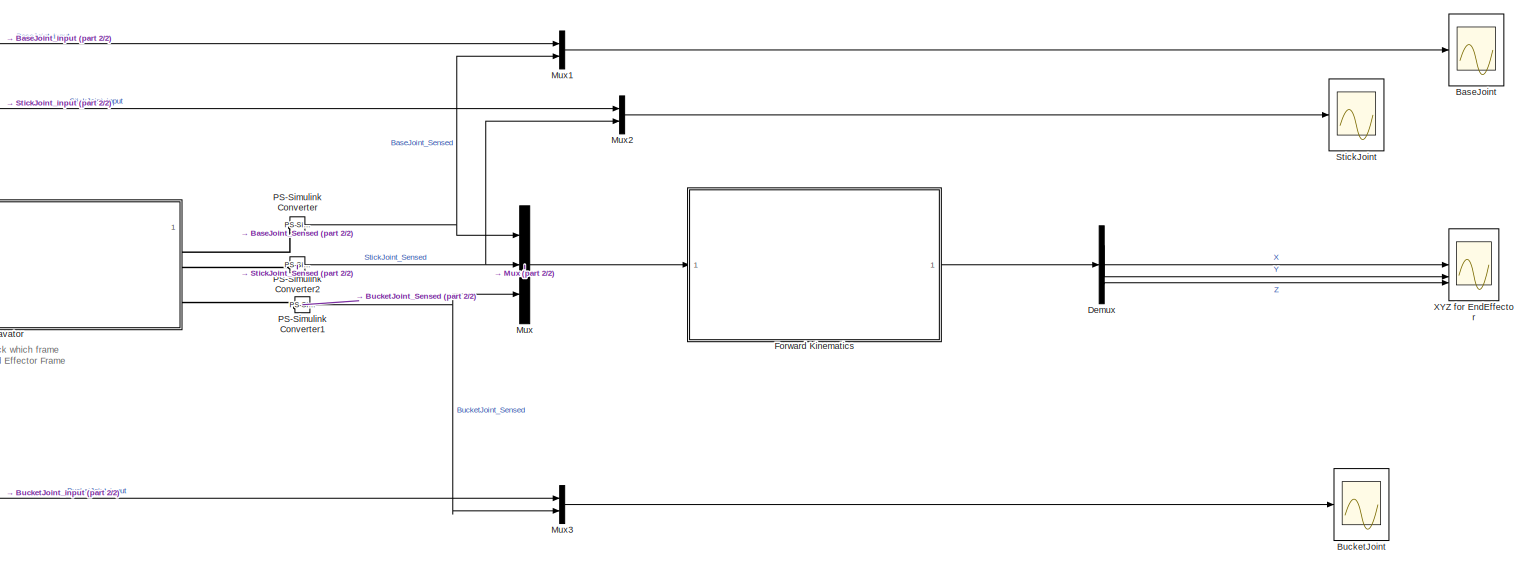
[diagram: root canvas - part 1/2, center side, full height]
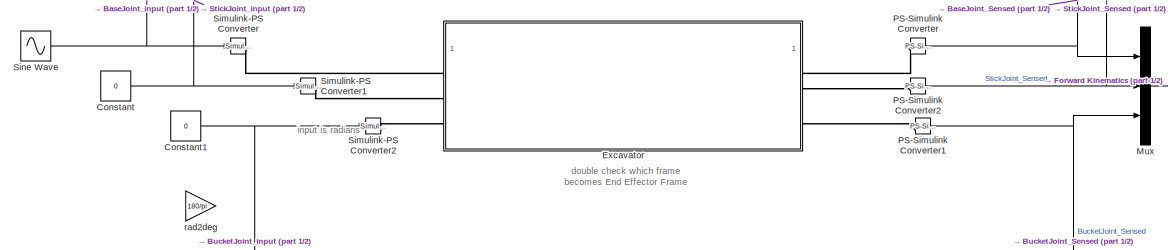
[diagram: root canvas - part 2/2, middle left region]
MODEL slx_75102b206fad
KIND model
CONFIG AbsTol = auto
CONFIG EnableMultiTasking = off
CONFIG FixedStep = auto
CONFIG MaxStep = auto
CONFIG MinStep = auto
CONFIG RelTol = 1e-3
CONFIG SampleTimeConstraint = Unconstrained
CONFIG SolverName = VariableStepAuto
CONFIG StartTime = 0.0
CONFIG StopTime = 10
BLOCK [Scope] BaseJoint
  Floating = off
  NumInputPorts = 1
  ScopeSpecificationString = Simulink.scopes.TimeScopeBlockCfg('CurrentConfiguration', extmgr.ConfigurationSet(extmgr.Configuration('Core','General UI',true),extmgr.Configuration('Core','Source UI',true),extmgr.Configuration('Sources','WiredSimulink',true,'DataLoggingVariableName','ScopeData1'),extmgr.Configuration('Visuals','Time Domain',true,'SerializedDisplays',{struct('MinYLimReal','0.5236','MaxYLimReal','1.8326','YLabelR...<+1547ch>
BLOCK [Scope] BucketJoint
  Floating = off
  NumInputPorts = 1
  ScopeSpecificationString = Simulink.scopes.TimeScopeBlockCfg('CurrentConfiguration', extmgr.ConfigurationSet(extmgr.Configuration('Core','General UI',true),extmgr.Configuration('Core','Source UI',true),extmgr.Configuration('Sources','WiredSimulink',true,'DataLoggingVariableName','ScopeData2'),extmgr.Configuration('Visuals','Time Domain',true,'SerializedDisplays',{struct('MinYLimReal','-1.00000','MaxYLimReal','1.00000','YLab...<+1561ch>
BLOCK [Constant] Constant
  Value = 0
BLOCK [Constant] Constant1
  Value = 0
BLOCK [Demux] Demux
  Outputs = 3
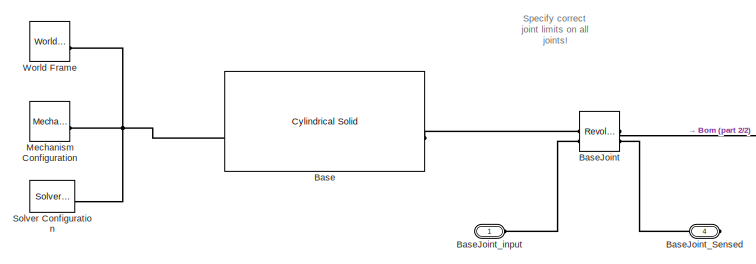
[diagram: Excavator - part 1/2, left side, full height]
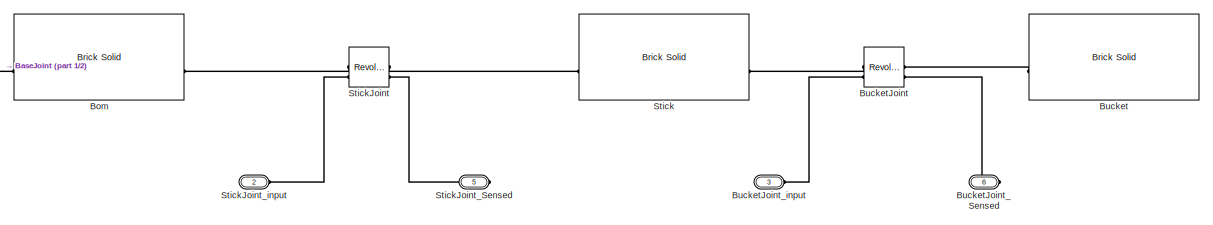
[diagram: Excavator - part 2/2, middle right region]
BLOCK [SubSystem] Excavator
BLOCK [Reference] Excavator/Base  REF=sm_lib/Body Elements/Cylindrical Solid
  SourceBlock = sm_lib/Body Elements/Cylindrical Solid
  SourceType = Cylindrical Solid
BLOCK [Reference] Excavator/BaseJoint  REF=sm_lib/Joints/Revolute Joint
  SourceBlock = sm_lib/Joints/Revolute Joint
  SourceType = Revolute Joint
BLOCK [PMIOPort] Excavator/BaseJoint_Sensed
  Port = 4
  Side = Right
BLOCK [PMIOPort] Excavator/BaseJoint_input
  Side = Left
BLOCK [Reference] Excavator/Bom  REF=sm_lib/Body Elements/Brick Solid
  SourceBlock = sm_lib/Body Elements/Brick Solid
  SourceType = Brick Solid
BLOCK [Reference] Excavator/Bucket  REF=sm_lib/Body Elements/Brick Solid
  SourceBlock = sm_lib/Body Elements/Brick Solid
  SourceType = Brick Solid
BLOCK [Reference] Excavator/BucketJoint  REF=sm_lib/Joints/Revolute Joint
  SourceBlock = sm_lib/Joints/Revolute Joint
  SourceType = Revolute Joint
BLOCK [PMIOPort] Excavator/BucketJoint_Sensed
  Port = 6
  Side = Right
BLOCK [PMIOPort] Excavator/BucketJoint_input
  Port = 3
  Side = Left
BLOCK [Reference] Excavator/Mechanism Configuration  REF=sm_lib/Utilities/Mechanism
Configuration
  SourceBlock = sm_lib/Utilities/Mechanism\nConfiguration
  SourceType = Mechanism\nConfiguration
BLOCK [Reference] Excavator/Solver Configuration  REF=nesl_utility/Solver
Configuration
  SourceBlock = nesl_utility/Solver\nConfiguration
  SourceType = Solver\nConfiguration
BLOCK [Reference] Excavator/Stick  REF=sm_lib/Body Elements/Brick Solid
  SourceBlock = sm_lib/Body Elements/Brick Solid
  SourceType = Brick Solid
BLOCK [Reference] Excavator/StickJoint  REF=sm_lib/Joints/Revolute Joint
  SourceBlock = sm_lib/Joints/Revolute Joint
  SourceType = Revolute Joint
BLOCK [PMIOPort] Excavator/StickJoint_Sensed
  Port = 5
  Side = Right
BLOCK [PMIOPort] Excavator/StickJoint_input
  Port = 2
  Side = Left
BLOCK [Reference] Excavator/World Frame  REF=sm_lib/Frames and
Transforms/World Frame
  SourceBlock = sm_lib/Frames and\nTransforms/World Frame
  SourceType = World Frame
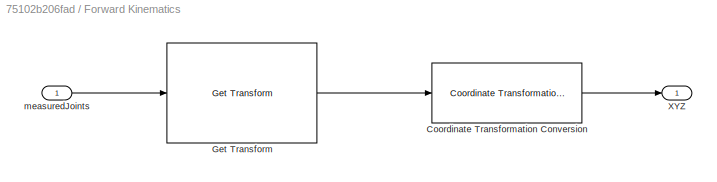
BLOCK [SubSystem] Forward Kinematics
BLOCK [Reference] Forward Kinematics/Coordinate Transformation Conversion  REF=robotcorelib/Coordinate Transformation Conversion
  LibrarySourceBlock = robotutilslib/Coordinate Transformation Conversion
  SourceBlock = robotcorelib/Coordinate Transformation Conversion
  SourceType = robotics.slcore.internal.block.CoordinateTransformationConversion
BLOCK [Reference] Forward Kinematics/Get Transform  REF=robotmaniplib/Get Transform
  SourceBlock = robotmaniplib/Get Transform
  SourceType = Get Transform
BLOCK [Outport] Forward Kinematics/XYZ
BLOCK [Inport] Forward Kinematics/measuredJoints
BLOCK [Mux] Mux
  DisplayOption = bar
  Inputs = 3
BLOCK [Mux] Mux1
  DisplayOption = bar
  Inputs = 2
BLOCK [Mux] Mux2
  DisplayOption = bar
  Inputs = 2
BLOCK [Mux] Mux3
  DisplayOption = bar
  Inputs = 2
BLOCK [Reference] PS-Simulink Converter  REF=nesl_utility/PS-Simulink
Converter
  SourceBlock = nesl_utility/PS-Simulink\nConverter
  SourceType = PS-Simulink\nConverter
BLOCK [Reference] PS-Simulink Converter1  REF=nesl_utility/PS-Simulink
Converter
  SourceBlock = nesl_utility/PS-Simulink\nConverter
  SourceType = PS-Simulink\nConverter
BLOCK [Reference] PS-Simulink Converter2  REF=nesl_utility/PS-Simulink
Converter
  SourceBlock = nesl_utility/PS-Simulink\nConverter
  SourceType = PS-Simulink\nConverter
BLOCK [Reference] Simulink-PS Converter  REF=nesl_utility/Simulink-PS
Converter
  SourceBlock = nesl_utility/Simulink-PS\nConverter
  SourceType = Simulink-PS\nConverter
BLOCK [Reference] Simulink-PS Converter1  REF=nesl_utility/Simulink-PS
Converter
  SourceBlock = nesl_utility/Simulink-PS\nConverter
  SourceType = Simulink-PS\nConverter
BLOCK [Reference] Simulink-PS Converter2  REF=nesl_utility/Simulink-PS
Converter
  SourceBlock = nesl_utility/Simulink-PS\nConverter
  SourceType = Simulink-PS\nConverter
BLOCK [Sin] Sine Wave
  Amplitude = 30*pi/180
  Bias = 67.5*pi/180
  SampleTime = 0
BLOCK [Scope] StickJoint
  Floating = off
  NumInputPorts = 1
  ScopeSpecificationString = Simulink.scopes.TimeScopeBlockCfg('CurrentConfiguration', extmgr.ConfigurationSet(extmgr.Configuration('Core','General UI',true),extmgr.Configuration('Core','Source UI',true),extmgr.Configuration('Sources','WiredSimulink',true,'DataLoggingVariableName','ScopeData3'),extmgr.Configuration('Visuals','Time Domain',true,'SerializedDisplays',{struct('MinYLimReal','-1.00000','MaxYLimReal','1.00000','YLab...<+1559ch>
BLOCK [Scope] XYZ for EndEffector
  Floating = off
  NumInputPorts = 3
  ScopeSpecificationString = Simulink.scopes.TimeScopeBlockCfg('CurrentConfiguration', extmgr.ConfigurationSet(extmgr.Configuration('Core','General UI',true),extmgr.Configuration('Core','Source UI',true),extmgr.Configuration('Sources','WiredSimulink',true),extmgr.Configuration('Visuals','Time Domain',true,'SerializedDisplays',{struct('MinYLimReal','-0.90981','MaxYLimReal','3.93984','YLabelReal','','MinYLimMag','0.00000','MaxY...<+1449ch>
BLOCK [Gain] rad2deg
  Gain = 180/pi
ANNOTATION (root): double check which frame becomes End Effector Frame
ANNOTATION (root): input is radians
ANNOTATION Excavator: Specify correct joint limits on all joints!
NET Constant1:1 -> Mux3:1, Simulink-PS Converter2:1
NET Constant:1 -> Mux2:1, Simulink-PS Converter1:1
LINE Demux:1 -> XYZ for EndEffector:1
LINE Demux:2 -> XYZ for EndEffector:2
LINE Demux:3 -> XYZ for EndEffector:3
LINE Forward Kinematics/Coordinate Transformation Conversion:1 -> Forward Kinematics/XYZ:1
LINE Forward Kinematics/Get Transform:1 -> Forward Kinematics/Coordinate Transformation Conversion:1
LINE Forward Kinematics/measuredJoints:1 -> Forward Kinematics/Get Transform:1
LINE Forward Kinematics:1 -> Demux:1
LINE Mux1:1 -> BaseJoint:1
LINE Mux2:1 -> StickJoint:1
LINE Mux3:1 -> BucketJoint:1
LINE Mux:1 -> Forward Kinematics:1
NET PS-Simulink Converter1:1 -> Mux3:2, Mux:3
NET PS-Simulink Converter2:1 -> Mux2:2, Mux:2
NET PS-Simulink Converter:1 -> Mux1:2, Mux:1
NET Sine Wave:1 -> Mux1:1, Simulink-PS Converter:1
PNET net1: Excavator/Base:LConn1 -- Excavator/Mechanism Configuration:RConn1 -- Excavator/Solver Configuration:RConn1 -- Excavator/World Frame:RConn1
PLINE Excavator/Base:RConn1 -- Excavator/BaseJoint:LConn1
PLINE Excavator/BaseJoint:LConn2 -- Excavator/BaseJoint_input:RConn1
PLINE Excavator/BaseJoint:RConn1 -- Excavator/Bom:LConn1
PLINE Excavator/BaseJoint:RConn2 -- Excavator/BaseJoint_Sensed:RConn1
PLINE Excavator/Bom:RConn1 -- Excavator/StickJoint:LConn1
PLINE Excavator/Bucket:LConn1 -- Excavator/BucketJoint:RConn1
PLINE Excavator/BucketJoint:LConn1 -- Excavator/Stick:RConn1
PLINE Excavator/BucketJoint:LConn2 -- Excavator/BucketJoint_input:RConn1
PLINE Excavator/BucketJoint:RConn2 -- Excavator/BucketJoint_Sensed:RConn1
PLINE Excavator/Stick:LConn1 -- Excavator/StickJoint:RConn1
PLINE Excavator/StickJoint:LConn2 -- Excavator/StickJoint_input:RConn1
PLINE Excavator/StickJoint:RConn2 -- Excavator/StickJoint_Sensed:RConn1
PLINE Excavator:LConn1 -- Simulink-PS Converter:RConn1
PLINE Excavator:LConn2 -- Simulink-PS Converter1:RConn1
PLINE Excavator:LConn3 -- Simulink-PS Converter2:RConn1
PLINE Excavator:RConn1 -- PS-Simulink Converter:LConn1
PLINE Excavator:RConn2 -- PS-Simulink Converter2:LConn1
PLINE Excavator:RConn3 -- PS-Simulink Converter1:LConn1
note: NET lines group one-source signal fan-out (src -> all destinations, sorted); 1:1 wires keep LINE; PNET lines group multi-terminal physical nets as a canonical sorted terminal list (undirected conserving connections); 2-terminal nets keep the pairwise PLINE form
